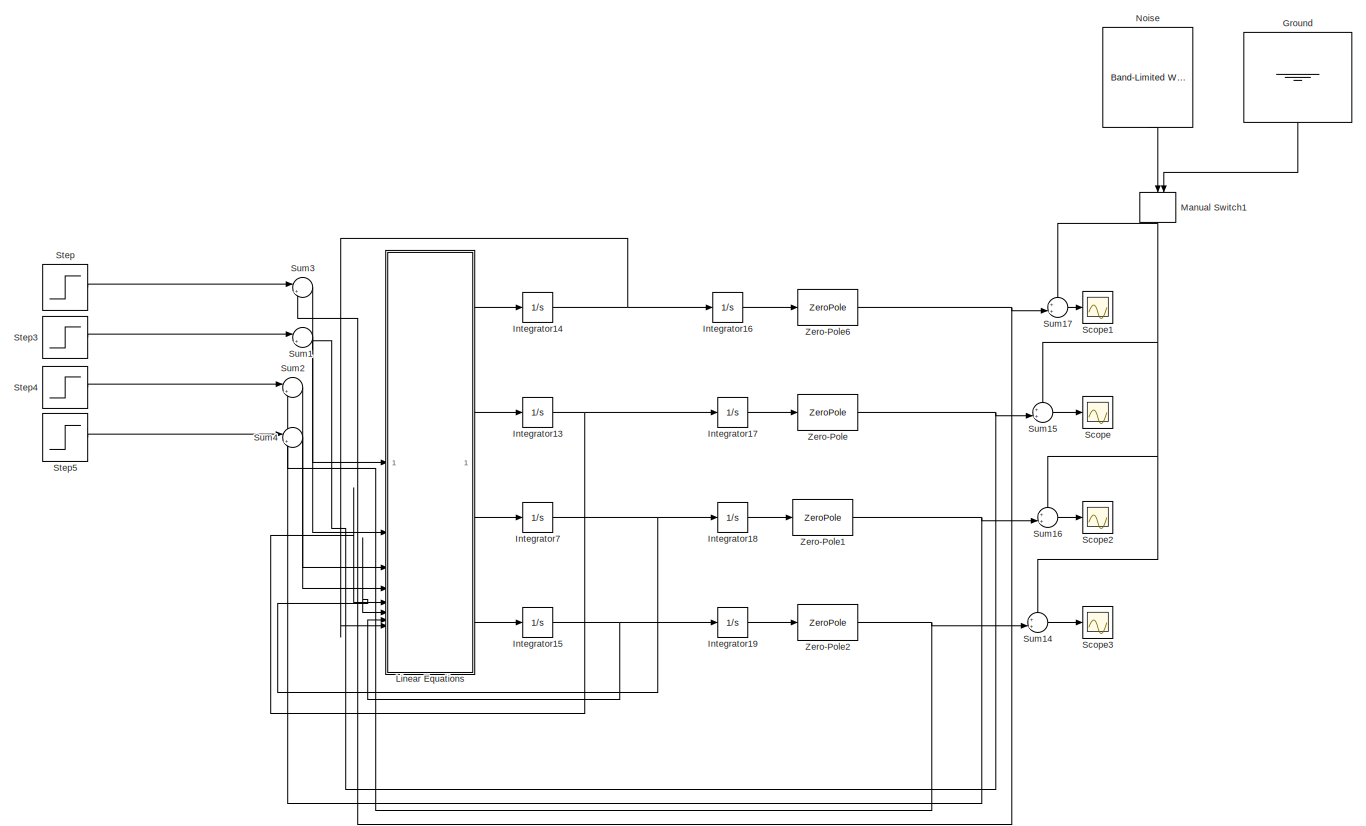
[diagram: root canvas - part 1/1, most of the canvas]
MODEL slx_2284e68b1f59
KIND model
CONFIG AbsTol = auto
CONFIG EnableMultiTasking = on
CONFIG FixedStep = auto
CONFIG MaxStep = auto
CONFIG MinStep = auto
CONFIG RelTol = 1e-3
CONFIG SampleTimeConstraint = Unconstrained
CONFIG SolverName = VariableStepAuto
CONFIG StartTime = 0.0
CONFIG StopTime = 100
BLOCK [Ground] Ground
  NameLocation = left
BLOCK [Integrator] Integrator13
BLOCK [Integrator] Integrator14
BLOCK [Integrator] Integrator15
BLOCK [Integrator] Integrator16
BLOCK [Integrator] Integrator17
BLOCK [Integrator] Integrator18
BLOCK [Integrator] Integrator19
BLOCK [Integrator] Integrator7
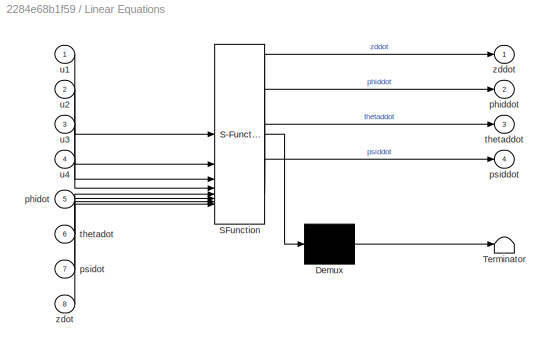
BLOCK [SubSystem] Linear Equations
  ErrorFcn = Stateflow.Translate.translate
  PermitHierarchicalResolution = ExplicitOnly
  SFBlockType = MATLAB Function
  TreatAsAtomicUnit = on
BLOCK [Demux] Linear Equations/ Demux 
  Outputs = 1
BLOCK [S-Function] Linear Equations/ SFunction 
  EnableBusSupport = on
  FunctionName = sf_sfun
  PortCounts = [8 5]
  SFcnIsStateOwnerBlock = off
  SFunctionDeploymentMode = off
  Tag = Stateflow S-Function 1
BLOCK [Terminator] Linear Equations/ Terminator 
BLOCK [Outport] Linear Equations/phiddot
  Port = 2
BLOCK [Inport] Linear Equations/phidot
  Port = 5
BLOCK [Outport] Linear Equations/psiddot
  Port = 4
BLOCK [Inport] Linear Equations/psidot
  Port = 7
BLOCK [Outport] Linear Equations/thetaddot
  Port = 3
BLOCK [Inport] Linear Equations/thetadot
  Port = 6
BLOCK [Inport] Linear Equations/u1
BLOCK [Inport] Linear Equations/u2
  Port = 2
BLOCK [Inport] Linear Equations/u3
  Port = 3
BLOCK [Inport] Linear Equations/u4
  Port = 4
BLOCK [Outport] Linear Equations/zddot
BLOCK [Inport] Linear Equations/zdot
  Port = 8
BLOCK [ManualSwitch] Manual Switch1
  NameLocation = left
BLOCK [Reference] Noise  REF=simulink/Sources/Band-Limited
White Noise
  NameLocation = left
  SourceBlock = simulink/Sources/Band-Limited\nWhite Noise
  SourceType = Band-Limited White Noise.
BLOCK [Scope] Scope
  Floating = off
  NumInputPorts = 1
  ScopeSpecificationString = Simulink.scopes.TimeScopeBlockCfg('CurrentConfiguration', extmgr.ConfigurationSet(extmgr.Configuration('Core','General UI',true),extmgr.Configuration('Core','Source UI',true),extmgr.Configuration('Sources','WiredSimulink',true),extmgr.Configuration('Visuals','Time Domain',true,'SerializedDisplays',{struct('MinYLimReal','-0.00211','MaxYLimReal','0.01872','YLabelReal','','MinYLimMag','0.00000','MaxY...<+1344ch>
BLOCK [Scope] Scope1
  Floating = off
  NumInputPorts = 1
  ScopeSpecificationString = Simulink.scopes.TimeScopeBlockCfg('CurrentConfiguration', extmgr.ConfigurationSet(extmgr.Configuration('Core','General UI',true),extmgr.Configuration('Core','Source UI',true),extmgr.Configuration('Sources','WiredSimulink',true,'DataLoggingVariableName','ScopeData1'),extmgr.Configuration('Visuals','Time Domain',true,'SerializedDisplays',{struct('MinYLimReal','-0.00159','MaxYLimReal','0.01406','YLab...<+1470ch>
BLOCK [Scope] Scope2
  Floating = off
  NumInputPorts = 1
  ScopeSpecificationString = Simulink.scopes.TimeScopeBlockCfg('CurrentConfiguration', extmgr.ConfigurationSet(extmgr.Configuration('Core','General UI',true),extmgr.Configuration('Core','Source UI',true),extmgr.Configuration('Sources','WiredSimulink',true,'DataLoggingVariableName','ScopeData2'),extmgr.Configuration('Visuals','Time Domain',true,'SerializedDisplays',{struct('MinYLimReal','-0.00191','MaxYLimReal','0.01694','YLab...<+1408ch>
BLOCK [Scope] Scope3
  Floating = off
  NumInputPorts = 1
  ScopeSpecificationString = Simulink.scopes.TimeScopeBlockCfg('CurrentConfiguration', extmgr.ConfigurationSet(extmgr.Configuration('Core','General UI',true),extmgr.Configuration('Core','Source UI',true),extmgr.Configuration('Sources','WiredSimulink',true,'DataLoggingVariableName','ScopeData3'),extmgr.Configuration('Visuals','Time Domain',true,'SerializedDisplays',{struct('MinYLimReal','-0.0016','MaxYLimReal','0.01408','YLabe...<+1439ch>
BLOCK [Step] Step
  After = 0.01
  SampleTime = 0
BLOCK [Step] Step3
  After = 0.01
  SampleTime = 0
BLOCK [Step] Step4
  After = 0.01
  SampleTime = 0
BLOCK [Step] Step5
  After = 0.01
  SampleTime = 0
BLOCK [Sum] Sum1
  Inputs = |+-
BLOCK [Sum] Sum14
  Inputs = ++|
BLOCK [Sum] Sum15
  Inputs = ++|
BLOCK [Sum] Sum16
  Inputs = ++|
BLOCK [Sum] Sum17
  Inputs = ++|
BLOCK [Sum] Sum2
  Inputs = |+-
BLOCK [Sum] Sum3
  Inputs = |+-
BLOCK [Sum] Sum4
  Inputs = |+-
BLOCK [ZeroPole] Zero-Pole
  Gain = [290]
  Poles = [-49]
  Zeros = [-0.949]
BLOCK [ZeroPole] Zero-Pole1
  Gain = [100]
  Poles = [-49]
  Zeros = [-0.949]
BLOCK [ZeroPole] Zero-Pole2
  Gain = [3.58]
  Poles = [-16.1]
  Zeros = [-0.3]
BLOCK [ZeroPole] Zero-Pole6
  Gain = [90.58]
  Poles = [-16.1]
  Zeros = [-0.3]
LINE Ground:1 -> Manual Switch1:2
NET Integrator13:1 -> Integrator17:1, Linear Equations:5
NET Integrator14:1 -> Integrator16:1, Linear Equations:8
NET Integrator15:1 -> Integrator19:1, Linear Equations:7
LINE Integrator16:1 -> Zero-Pole6:1
LINE Integrator17:1 -> Zero-Pole:1
LINE Integrator18:1 -> Zero-Pole1:1
LINE Integrator19:1 -> Zero-Pole2:1
NET Integrator7:1 -> Integrator18:1, Linear Equations:6
LINE Linear Equations:1 -> Integrator14:1
LINE Linear Equations:2 -> Integrator13:1
LINE Linear Equations:3 -> Integrator7:1
LINE Linear Equations:4 -> Integrator15:1
NET Manual Switch1:1 -> Sum14:1, Sum15:1, Sum16:1, Sum17:1
LINE Noise:1 -> Manual Switch1:1
LINE Step3:1 -> Sum1:1
LINE Step4:1 -> Sum2:1
LINE Step5:1 -> Sum4:1
LINE Step:1 -> Sum3:1
LINE Sum14:1 -> Scope3:1
LINE Sum15:1 -> Scope:1
LINE Sum16:1 -> Scope2:1
LINE Sum17:1 -> Scope1:1
LINE Sum1:1 -> Linear Equations:2
LINE Sum2:1 -> Linear Equations:3
LINE Sum3:1 -> Linear Equations:1
LINE Sum4:1 -> Linear Equations:4
NET Zero-Pole1:1 -> Sum16:2, Sum2:2
NET Zero-Pole2:1 -> Sum14:2, Sum4:2
NET Zero-Pole6:1 -> Sum17:2, Sum3:2
NET Zero-Pole:1 -> Sum15:2, Sum1:2
note: NET lines group one-source signal fan-out (src -> all destinations, sorted); 1:1 wires keep LINE
CHART Linear Equations states=1 transitions=1
  STATE_LABEL 'eML_blk_kernel()'
  STATE_LABEL 'SCRIPT:\nfunction [zddot,phiddot,thetaddot,psiddot] = fcn(u1,u2,u3,u4,phidot,thetadot,psidot,zdot)\nixx=0.0086;\niyy=0.0086;\nizz=0.0176;\nm=0.47;\nzddot=zdot+u1/m;\nphiddot=phidot+u2/ixx;\nthetaddot=thetadot+u3/iyy;\npsiddot=psidot+u4/izz;\n\n'
CHART  states=0 transitions=0
